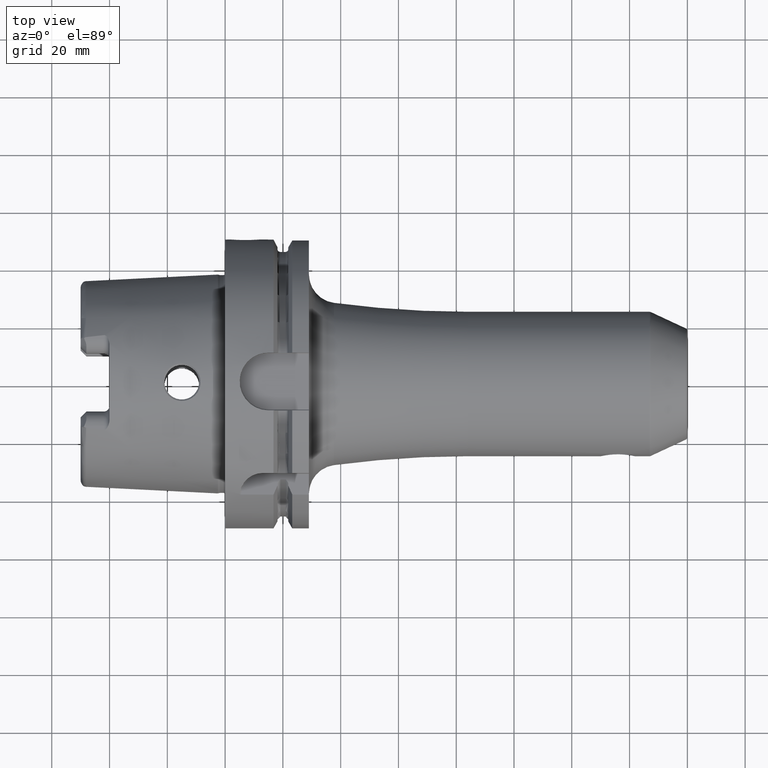
[diagram: clean part render]
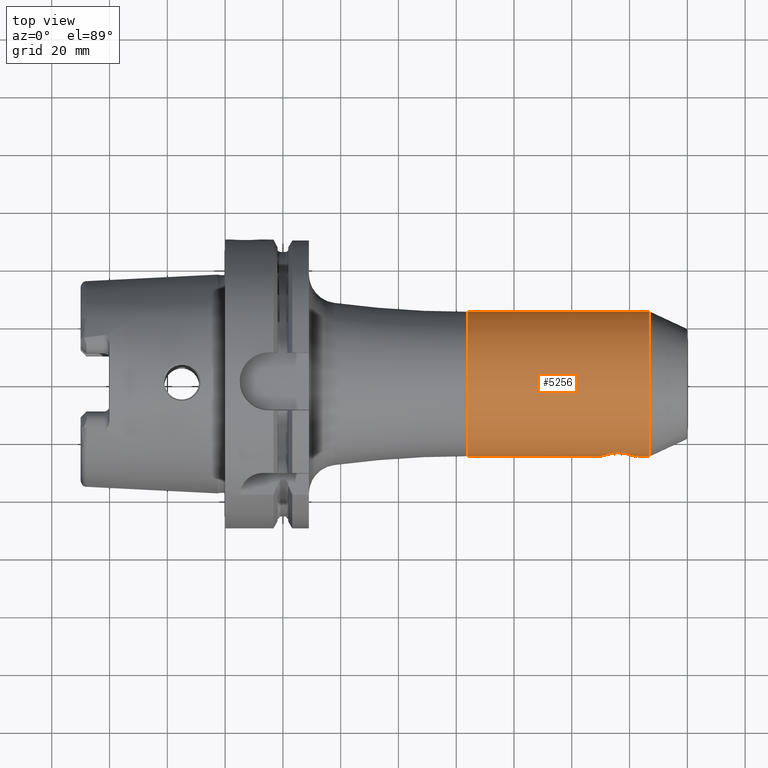
[diagram: same view with one face highlighted and labeled with its STEP entity id]
A machine part, top view. The second image highlights one B-rep face of the part: STEP entity #5256.
In plain terms, the highlighted cylindrical surface (partial cylindrical patch) has radius 25 mm, axis along (1, 0, 0).
Its self-contained STEP definition (entity closure, byte-faithful):
#1845=DIRECTION('',(-1.E0,0.E0,0.E0));
#1846=VECTOR('',#1845,4.6E1);
#1847=CARTESIAN_POINT('',(1.3E2,-2.5E1,0.E0));
#1848=LINE('',#1847,#1846);
#1880=DIRECTION('',(-1.E0,0.E0,-1.681557308434E-14));
#1881=VECTOR('',#1880,4.911263814300E0);
#1882=CARTESIAN_POINT('',(1.469112638143E2,-2.5E1,7.992274111900E-14));
#1883=LINE('',#1882,#1881);
#1889=DIRECTION('',(-1.E0,0.E0,0.E0));
#1890=VECTOR('',#1889,6.291126381430E1);
#1891=CARTESIAN_POINT('',(1.469112638143E2,2.5E1,-8.623926049159E-14));
#1892=LINE('',#1891,#1890);
#1893=CARTESIAN_POINT('',(8.4E1,0.E0,0.E0));
#1894=DIRECTION('',(1.E0,0.E0,0.E0));
#1895=DIRECTION('',(0.E0,1.E0,0.E0));
#1896=AXIS2_PLACEMENT_3D('',#1893,#1894,#1895);
#1898=CARTESIAN_POINT('',(1.469112638143E2,0.E0,0.E0));
#1899=DIRECTION('',(-1.E0,0.E0,0.E0));
#1900=DIRECTION('',(0.E0,-1.E0,0.E0));
#1901=AXIS2_PLACEMENT_3D('',#1898,#1899,#1900);
#1903=CARTESIAN_POINT('',(1.3E2,-2.5E1,0.E0));
#1904=CARTESIAN_POINT('',(1.3E2,-2.5E1,2.305361357811E-1));
#1905=CARTESIAN_POINT('',(1.300263186911E2,-2.499366284203E1,
6.891396944633E-1));
#1906=CARTESIAN_POINT('',(1.301458718979E2,-2.496524108323E1,1.374814862031E0));
#1907=CARTESIAN_POINT('',(1.303433381814E2,-2.491947633750E1,2.040690542262E0));
#1908=CARTESIAN_POINT('',(1.306194090784E2,-2.485799780176E1,2.685674272442E0));
#1909=CARTESIAN_POINT('',(1.309681676340E2,-2.478450854704E1,3.293323325566E0));
#1910=CARTESIAN_POINT('',(1.313902024953E2,-2.470190656645E1,3.862164976004E0));
#1911=CARTESIAN_POINT('',(1.318739740223E2,-2.461581732982E1,4.375173206174E0));
#1912=CARTESIAN_POINT('',(1.324171364466E2,-2.453022079245E1,4.830076362343E0));
#1913=CARTESIAN_POINT('',(1.330063340088E2,-2.445077068100E1,5.215562962692E0));
#1914=CARTESIAN_POINT('',(1.336340636452E2,-2.438155788896E1,5.528649394763E0));
#1915=CARTESIAN_POINT('',(1.342915784226E2,-2.432634982400E1,5.765597128463E0));
#1916=CARTESIAN_POINT('',(1.349658753569E2,-2.428814200651E1,5.923747561459E0));
#1917=CARTESIAN_POINT('',(1.356555349512E2,-2.426849546880E1,6.003359259746E0));
#1918=CARTESIAN_POINT('',(1.363441936907E2,-2.426849020827E1,6.003380778659E0));
#1919=CARTESIAN_POINT('',(1.370339565422E2,-2.428813614435E1,5.923770704812E0));
#1920=CARTESIAN_POINT('',(1.377080454967E2,-2.432632249003E1,5.765713357854E0));
#1921=CARTESIAN_POINT('',(1.383658453105E2,-2.438154946770E1,5.528684158932E0));
#1922=CARTESIAN_POINT('',(1.389932414782E2,-2.445071892561E1,5.215806204049E0));
#1923=CARTESIAN_POINT('',(1.395827813075E2,-2.453020763397E1,4.830142865722E0));
#1924=CARTESIAN_POINT('',(1.401257437212E2,-2.461577077172E1,4.375432421078E0));
#1925=CARTESIAN_POINT('',(1.406096837053E2,-2.470188439239E1,3.862310931497E0));
#1926=CARTESIAN_POINT('',(1.410316857765E2,-2.478447919064E1,3.293535610945E0));
#1927=CARTESIAN_POINT('',(1.413804578275E2,-2.485796863449E1,2.685951641643E0));
#1928=CARTESIAN_POINT('',(1.416566175269E2,-2.491946615318E1,2.040817797822E0));
#1929=CARTESIAN_POINT('',(1.418540843854E2,-2.496523081378E1,1.375009029725E0));
#1930=CARTESIAN_POINT('',(1.419736867446E2,-2.499366409357E1,
6.891459388659E-1));
#1931=CARTESIAN_POINT('',(1.42E2,-2.5E1,2.305345654704E-1));
#1932=CARTESIAN_POINT('',(1.42E2,-2.5E1,0.E0));
#3315=CARTESIAN_POINT('',(1.469112638143E2,2.5E1,0.E0));
#3316=CARTESIAN_POINT('',(1.469112638143E2,-2.5E1,0.E0));
#3317=VERTEX_POINT('',#3315);
#3318=VERTEX_POINT('',#3316);
#3333=VERTEX_POINT('',#1903);
#3334=VERTEX_POINT('',#1932);
#3337=CARTESIAN_POINT('',(8.4E1,2.5E1,0.E0));
#3338=CARTESIAN_POINT('',(8.4E1,-2.5E1,0.E0));
#3339=VERTEX_POINT('',#3337);
#3340=VERTEX_POINT('',#3338);
#5241=CARTESIAN_POINT('',(2.245E1,0.E0,0.E0));
#5242=DIRECTION('',(1.E0,0.E0,0.E0));
#5243=DIRECTION('',(0.E0,-1.E0,0.E0));
#5244=AXIS2_PLACEMENT_3D('',#5241,#5242,#5243);
#5245=CYLINDRICAL_SURFACE('',#5244,2.5E1);
#5246=ORIENTED_EDGE('',*,*,#5189,.F.);
#5247=ORIENTED_EDGE('',*,*,#5236,.F.);
#5249=ORIENTED_EDGE('',*,*,#5248,.F.);
#5250=ORIENTED_EDGE('',*,*,#5232,.T.);
#5252=ORIENTED_EDGE('',*,*,#5251,.F.);
#5253=ORIENTED_EDGE('',*,*,#5228,.T.);
#5254=EDGE_LOOP('',(#5246,#5247,#5249,#5250,#5252,#5253));
#5255=FACE_OUTER_BOUND('',#5254,.F.);
#5256=ADVANCED_FACE('',(#5255),#5245,.T.);
#1897=CIRCLE('',#1896,2.5E1);
#1902=CIRCLE('',#1901,2.5E1);
#1933=B_SPLINE_CURVE_WITH_KNOTS('',3,(#1903,#1904,#1905,#1906,#1907,#1908,#1909,
#1910,#1911,#1912,#1913,#1914,#1915,#1916,#1917,#1918,#1919,#1920,#1921,#1922,
#1923,#1924,#1925,#1926,#1927,#1928,#1929,#1930,#1931,#1932),.UNSPECIFIED.,.F.,
.F.,(4,1,1,1,1,1,1,1,1,1,1,1,1,1,1,1,1,1,1,1,1,1,1,1,1,1,1,4),(0.E0,
3.703703703704E-2,7.407407407407E-2,1.111111111111E-1,1.481481481481E-1,
1.851851851852E-1,2.222222222222E-1,2.592592592593E-1,2.962962962963E-1,
3.333333333333E-1,3.703703703704E-1,4.074074074074E-1,4.444444444444E-1,
4.814814814815E-1,5.185185185185E-1,5.555555555556E-1,5.925925925926E-1,
6.296296296296E-1,6.666666666667E-1,7.037037037037E-1,7.407407407407E-1,
7.777777777778E-1,8.148148148148E-1,8.518518518519E-1,8.888888888889E-1,
9.259259259259E-1,9.629629629630E-1,1.E0),.UNSPECIFIED.);
#5189=EDGE_CURVE('',#3339,#3340,#1897,.T.);
#5228=EDGE_CURVE('',#3333,#3340,#1848,.T.);
#5232=EDGE_CURVE('',#3318,#3334,#1883,.T.);
#5236=EDGE_CURVE('',#3317,#3339,#1892,.T.);
#5248=EDGE_CURVE('',#3318,#3317,#1902,.T.);
#5251=EDGE_CURVE('',#3333,#3334,#1933,.T.);